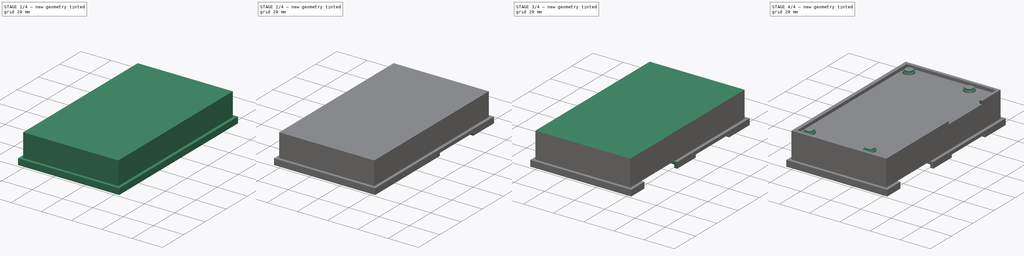
[diagram: build sequence overview — one tinted view per stage of 4, left to right]
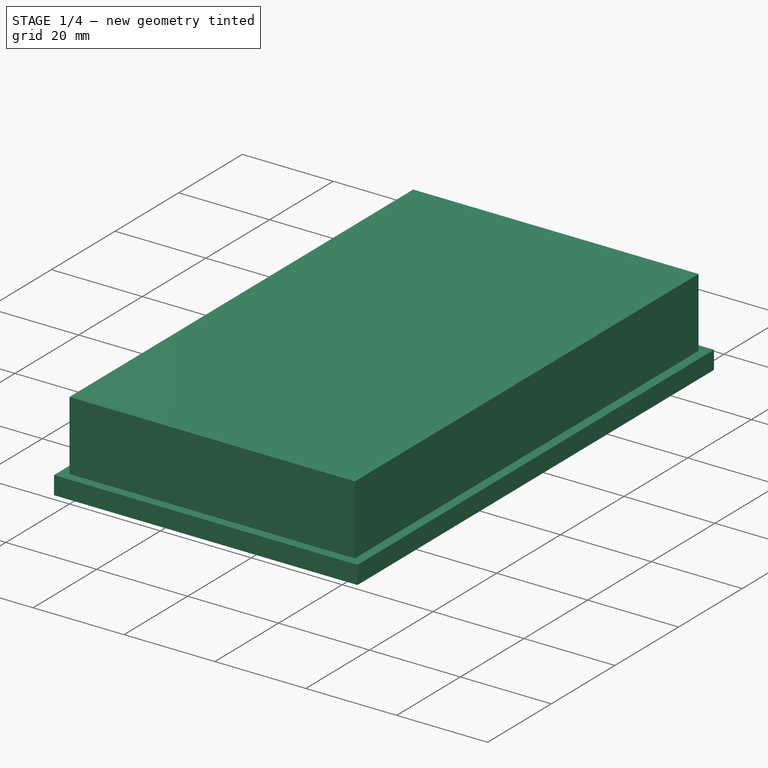
[diagram: stage 1 of 4 — iso view after this stage's code; geometry added in this stage tinted green]
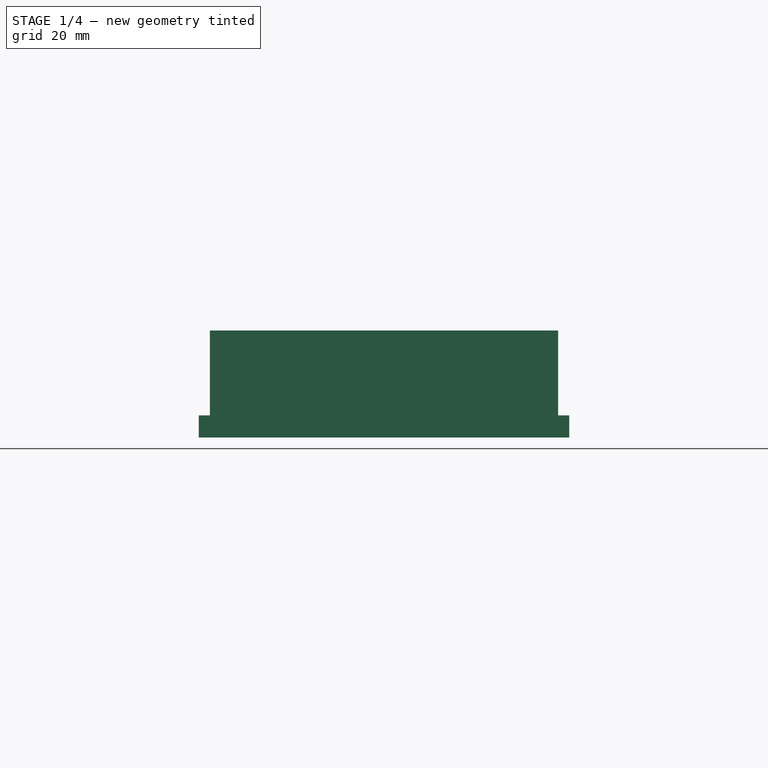
[diagram: stage 1 of 4 — front view after this stage's code; geometry added in this stage tinted green]
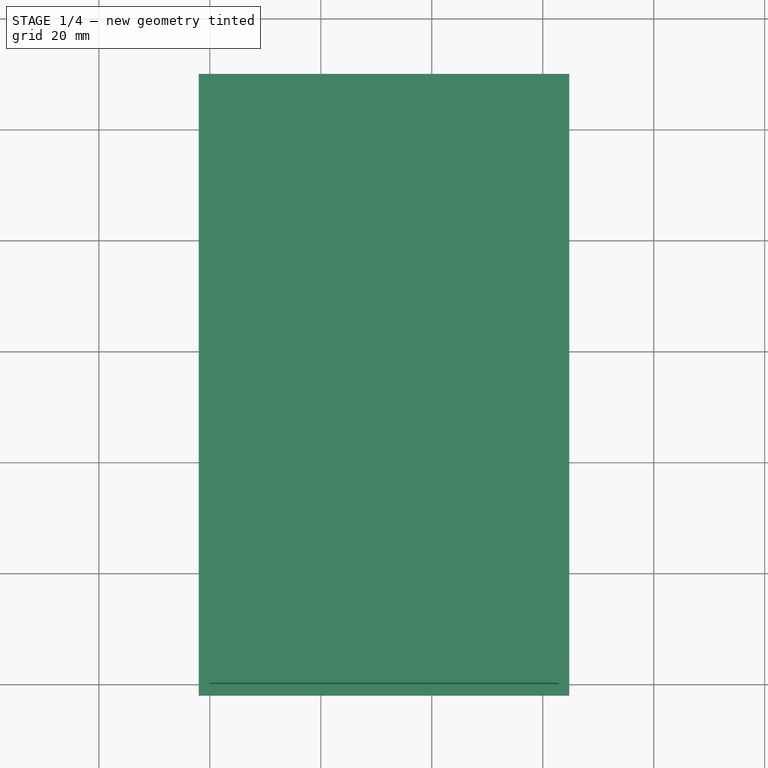
[diagram: stage 1 of 4 — top view after this stage's code; geometry added in this stage tinted green]
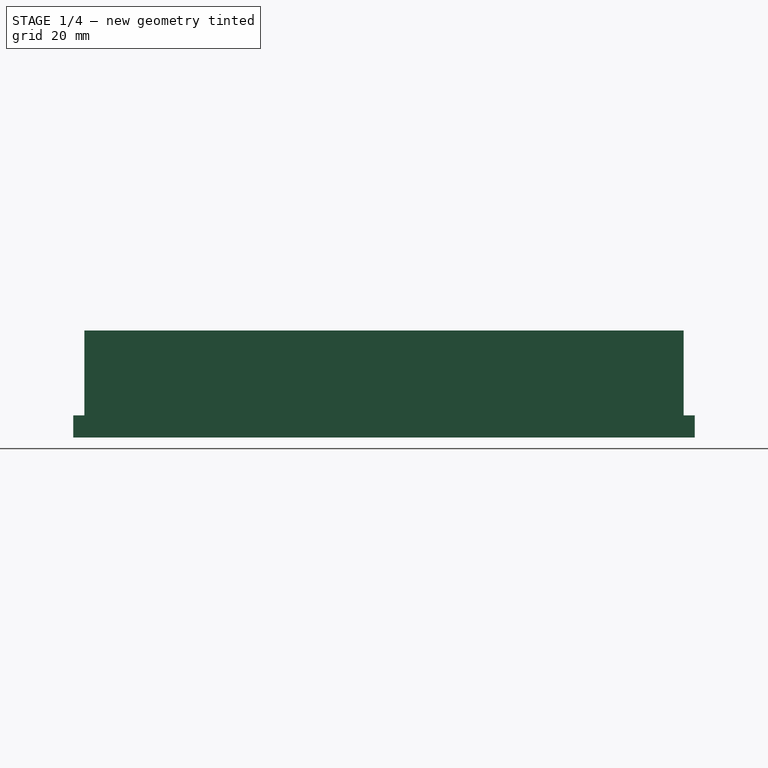
[diagram: stage 1 of 4 — right view after this stage's code; geometry added in this stage tinted green]
FCSTD DOCUMENT  (FreeCAD 0.18R4 (GitTag))
Label: CaseV1
License: All rights reserved
LicenseURL: http://en.wikipedia.org/wiki/All_rights_reserved
objects: Sketcher::SketchObject×12, PartDesign::Pocket×6, PartDesign::Pad×6, PartDesign::Body×2, App::Part×2, Part::Box×1, PartDesign::FeatureBase×1
note: 40 computed .brp shape members not serialized (recipe doc carries the construction recipe); baked Part::Feature solids carry a one-line shape summary decoded from their .brp

FEATURE [PartDesign::Body] Body
  BaseFeature = -> Box
  Group = -> [BaseFeature,Sketch,Pocket,Sketch001,Pocket001,Sketch002,Pad,Sketch003,Pad001]
  Origin = -> Origin001
  Tip = -> Pad001
FEATURE [App::Part] Part  label="Bottom"
  Group = -> [Body]
  Origin = -> Origin
  Placement = pos=(0,0,-19.3) rot=(0,0,1;0rad)
FEATURE [Sketcher::SketchObject] Sketch004
  MapMode = 5
  Support = -> [XY_Plane003]
  sketch-geometry (4):
    g0: LineSegment StartX=-2 StartY=-2 StartZ=0 EndX=64.78 EndY=-2 EndZ=0
    g1: LineSegment StartX=64.78 StartY=-2 StartZ=0 EndX=64.78 EndY=110 EndZ=0
    g2: LineSegment StartX=64.78 StartY=110 StartZ=0 EndX=-2 EndY=110 EndZ=0
    g3: LineSegment StartX=-2 StartY=110 StartZ=0 EndX=-2 EndY=-2 EndZ=0
  constraints (12):
    c: Coincident(g0,g1)
    c: Coincident(g1,g2)
    c: Coincident(g2,g3)
    c: Coincident(g3,g0)
    c: Horizontal(g0)
    c: Horizontal(g2)
    c: Vertical(g1)
    c: Vertical(g3)
    c: DistanceX(g0) = -2
    c: DistanceY(g0) = -2
    c: DistanceX(g2,g2) = 66.78
    c: DistanceY(g1,g1) = 112
FEATURE [PartDesign::Pad] Pad002
  Length = 4
  Length2 = 100
  Profile = -> Sketch004
  Reversed = true
  Type = 0
FEATURE [Sketcher::SketchObject] Sketch005
  MapMode = 5
  Support = -> [Pad002]
  sketch-geometry (4):
    g0: LineSegment StartX=0 StartY=0 StartZ=0 EndX=62.78 EndY=0 EndZ=0
    g1: LineSegment StartX=62.78 StartY=0 StartZ=0 EndX=62.78 EndY=108 EndZ=0
    g2: LineSegment StartX=62.78 StartY=108 StartZ=0 EndX=0 EndY=108 EndZ=0
    g3: LineSegment StartX=0 StartY=108 StartZ=0 EndX=0 EndY=0 EndZ=0
  constraints (12):
    c: Coincident(g0,g1)
    c: Coincident(g1,g2)
    c: Coincident(g2,g3)
    c: Coincident(g3,g0)
    c: Horizontal(g0)
    c: Horizontal(g2)
    c: Vertical(g1)
    c: Vertical(g3)
    c: DistanceX(g0) = 0
    c: DistanceY(g0) = 0
    c: DistanceX(g2,g2) = 62.78
    c: DistanceY(g1,g1) = 108
FEATURE [PartDesign::Pad] Pad003
  BaseFeature = -> Pad002
  Length = 15.3
  Length2 = 100
  Profile = -> Sketch005
  Type = 0
FEATURE [Sketcher::SketchObject] Sketch006
  MapMode = 5
  Placement = pos=(0,0,-4) rot=(1,0,0;3.14159rad)
  Support = -> [Pad003]
  sketch-geometry (4):
    g0: LineSegment StartX=0 StartY=0 StartZ=0 EndX=62.78 EndY=0 EndZ=0
    g1: LineSegment StartX=62.78 StartY=0 StartZ=0 EndX=62.78 EndY=-108 EndZ=0
    g2: LineSegment StartX=62.78 StartY=-108 StartZ=0 EndX=0 EndY=-108 EndZ=0
    g3: LineSegment StartX=0 StartY=-108 StartZ=0 EndX=0 EndY=0 EndZ=0
  constraints (12):
    c: Coincident(g0,g1)
    c: Coincident(g1,g2)
    c: Coincident(g2,g3)
    c: Coincident(g3,g0)
    c: Horizontal(g0)
    c: Horizontal(g2)
    c: Vertical(g1)
    c: Vertical(g3)
    c: DistanceX(g0) = 0
    c: DistanceY(g0) = 0
    c: DistanceX(g0,g0) = 62.78
    c: DistanceY(g1,g1) = 108
FEATURE [PartDesign::Pocket] Pocket002
  BaseFeature = -> Pad003
  Length = 2
  Length2 = 100
  Profile = -> Sketch006
  Type = 0
FEATURE [Sketcher::SketchObject] Sketch007
  MapMode = 5
  Placement = pos=(0,0,-2) rot=(1,0,0;3.14159rad)
  Support = -> [Pocket002]
  sketch-geometry (4):
    g0: LineSegment StartX=2 StartY=-2 StartZ=0 EndX=60.78 EndY=-2 EndZ=0
    g1: LineSegment StartX=60.78 StartY=-2 StartZ=0 EndX=60.78 EndY=-106 EndZ=0
    g2: LineSegment StartX=60.78 StartY=-106 StartZ=0 EndX=2 EndY=-106 EndZ=0
    g3: LineSegment StartX=2 StartY=-106 StartZ=0 EndX=2 EndY=-2 EndZ=0
  constraints (12):
    c: Coincident(g0,g1)
    c: Coincident(g1,g2)
    c: Coincident(g2,g3)
    c: Coincident(g3,g0)
    c: Horizontal(g0)
    c: Horizontal(g2)
    c: Vertical(g1)
    c: Vertical(g3)
    c: DistanceX(g0) = 2
    c: DistanceY(g0) = -2
    c: DistanceX(g0,g0) = 58.78
    c: DistanceY(g1,g1) = 104
FEATURE [PartDesign::Pocket] Pocket003
  BaseFeature = -> Pocket002
  Length = 15.3
  Length2 = 100
  Profile = -> Sketch007
  Type = 0
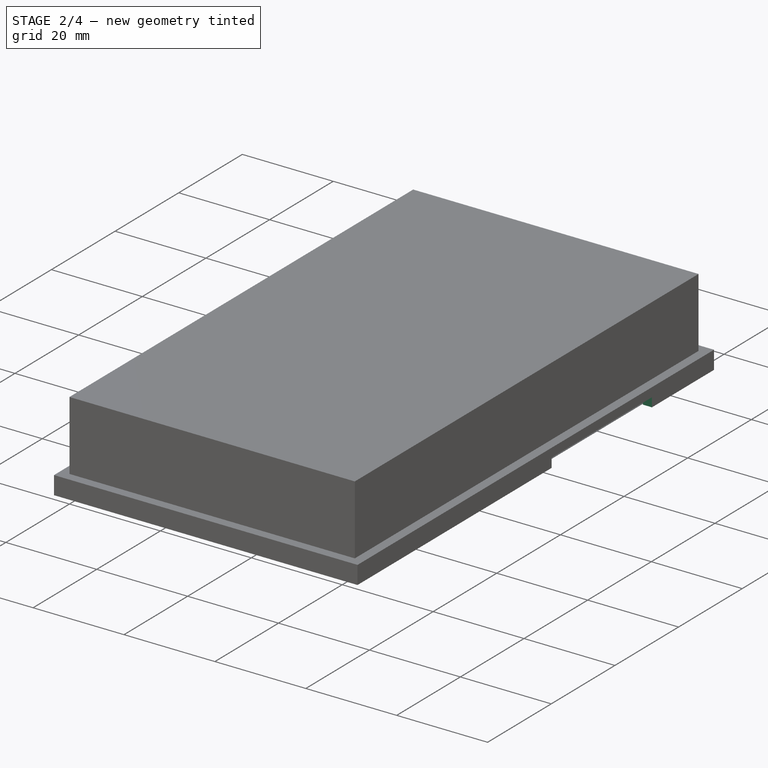
[diagram: stage 2 of 4 — iso view after this stage's code; geometry added in this stage tinted green]
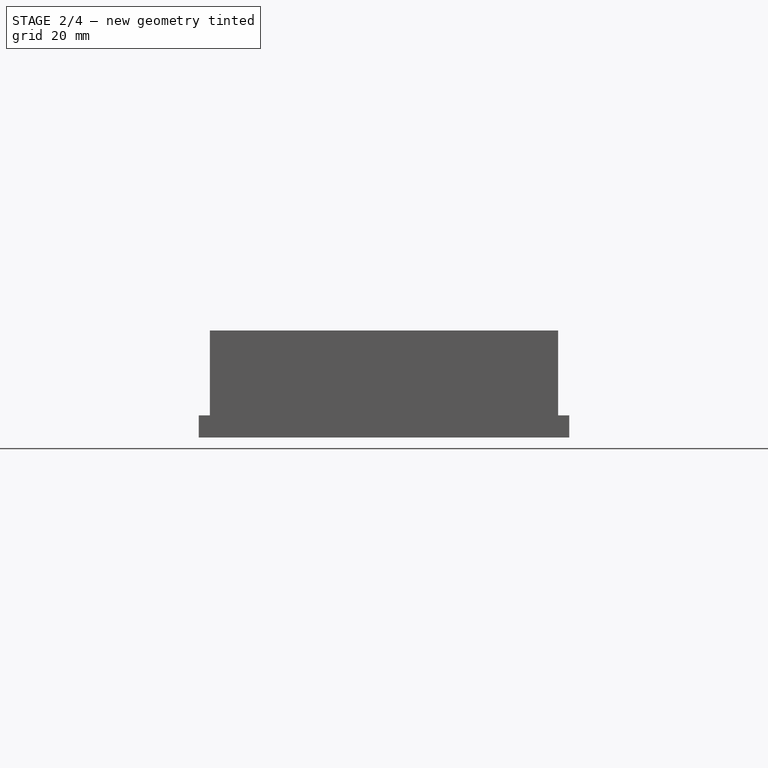
[diagram: stage 2 of 4 — front view after this stage's code; geometry added in this stage tinted green]
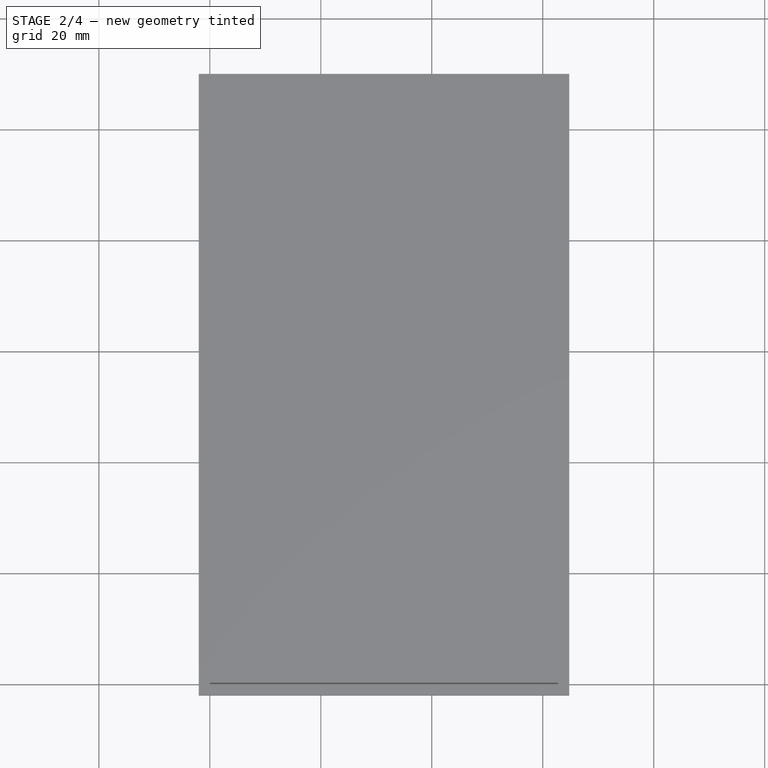
[diagram: stage 2 of 4 — top view after this stage's code; geometry added in this stage tinted green]
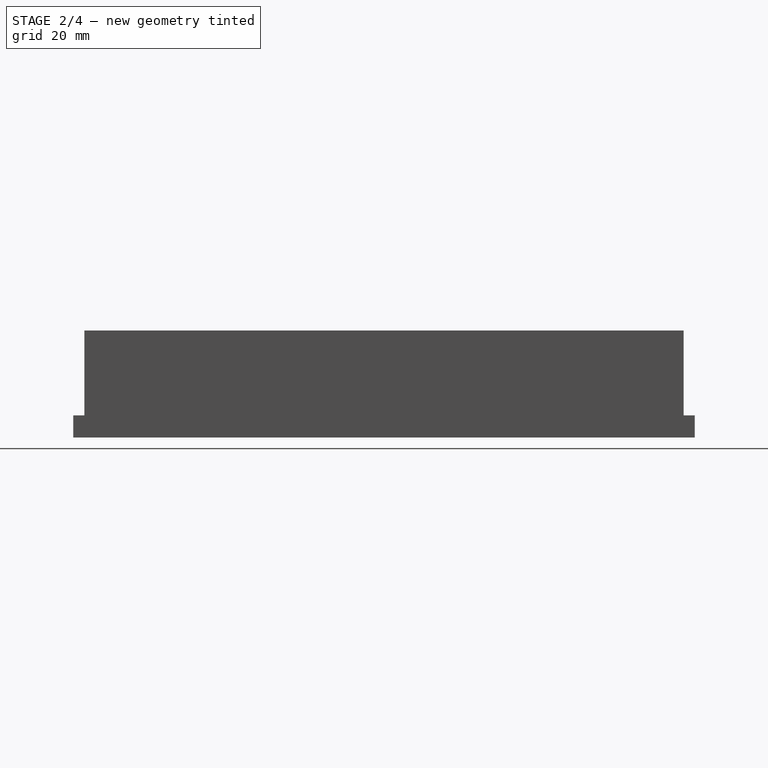
[diagram: stage 2 of 4 — right view after this stage's code; geometry added in this stage tinted green]
FEATURE [Sketcher::SketchObject] Sketch008
  MapMode = 5
  Placement = pos=(0,0,13.3) rot=(1,0,0;3.14159rad)
  Support = -> [Pocket003]
  sketch-geometry (4):
    g0: Circle CenterX=7 CenterY=-7 CenterZ=0 NormalX=0 NormalY=0 NormalZ=1 AngleXU=0 Radius=3.5
    g1: Circle CenterX=47 CenterY=-7 CenterZ=0 NormalX=0 NormalY=0 NormalZ=1 AngleXU=0 Radius=3.5
    g2: Circle CenterX=7 CenterY=-101 CenterZ=0 NormalX=0 NormalY=0 NormalZ=1 AngleXU=0 Radius=3.5
    g3: Circle CenterX=47 CenterY=-101 CenterZ=0 NormalX=0 NormalY=0 NormalZ=1 AngleXU=0 Radius=3.5
  constraints (12):
    c: DistanceX(g0) = 7
    c: DistanceY(g0) = -7
    c: Diameter(g0) = 7
    c: DistanceX(g1) = 47
    c: DistanceY(g1) = -7
    c: DistanceX(g2) = 7
    c: DistanceY(g2) = -101
    c: Diameter(g1) = 7
    c: Diameter(g2) = 7
    c: DistanceX(g3) = 47
    c: DistanceY(g3) = -101
    c: Diameter(g3) = 7
FEATURE [PartDesign::Pad] Pad004
  BaseFeature = -> Pocket003
  Length = 14.5
  Length2 = 100
  Profile = -> Sketch008
  Type = 0
FEATURE [Sketcher::SketchObject] Sketch009
  MapMode = 5
  Placement = pos=(0,0,-1.2) rot=(1,0,0;3.14159rad)
  Support = -> [Pad004]
  sketch-geometry (4):
    g0: Circle CenterX=7 CenterY=-7 CenterZ=0 NormalX=0 NormalY=0 NormalZ=1 AngleXU=0 Radius=2.5
    g1: Circle CenterX=47 CenterY=-7 CenterZ=0 NormalX=0 NormalY=0 NormalZ=1 AngleXU=0 Radius=2.5
    g2: Circle CenterX=7 CenterY=-101 CenterZ=0 NormalX=0 NormalY=0 NormalZ=1 AngleXU=0 Radius=2.5
    g3: Circle CenterX=47 CenterY=-101 CenterZ=0 NormalX=0 NormalY=0 NormalZ=1 AngleXU=0 Radius=2.5
  constraints (12):
    c: DistanceX(g2) = 7
    c: DistanceY(g2) = -101
    c: DistanceX(g0) = 7
    c: DistanceY(g0) = -7
    c: DistanceX(g1) = 47
    c: DistanceY(g1) = -7
    c: DistanceX(g3) = 47
    c: DistanceY(g3) = -101
    c: Diameter(g0) = 5
    c: Diameter(g1) = 5
    c: Diameter(g2) = 5
    c: Diameter(g3) = 5
FEATURE [PartDesign::Pad] Pad005
  BaseFeature = -> Pad004
  Length = 0.8
  Length2 = 100
  Profile = -> Sketch009
  Type = 0
FEATURE [Sketcher::SketchObject] Sketch010
  MapMode = 5
  Placement = pos=(64.78,0,0) rot=(0.57735,0.57735,0.57735;2.0944rad)
  Support = -> [Pad005]
  sketch-geometry (4):
    g0: LineSegment StartX=59 StartY=-7.15 StartZ=0 EndX=90.5 EndY=-7.15 EndZ=0
    g1: LineSegment StartX=90.5 StartY=-7.15 StartZ=0 EndX=90.5 EndY=-2 EndZ=0
    g2: LineSegment StartX=90.5 StartY=-2 StartZ=0 EndX=59 EndY=-2 EndZ=0
    g3: LineSegment StartX=59 StartY=-2 StartZ=0 EndX=59 EndY=-7.15 EndZ=0
  constraints (12):
    c: Coincident(g0,g1)
    c: Coincident(g1,g2)
    c: Coincident(g2,g3)
    c: Coincident(g3,g0)
    c: Horizontal(g0)
    c: Horizontal(g2)
    c: Vertical(g1)
    c: Vertical(g3)
    c: DistanceX(g2) = 59
    c: DistanceY(g2) = -2
    c: DistanceX(g2,g2) = 31.5
    c: DistanceY(g1,g1) = 5.15
FEATURE [PartDesign::Pocket] Pocket004
  BaseFeature = -> Pad005
  Length = 5
  Length2 = 100
  Profile = -> Sketch010
  Type = 0
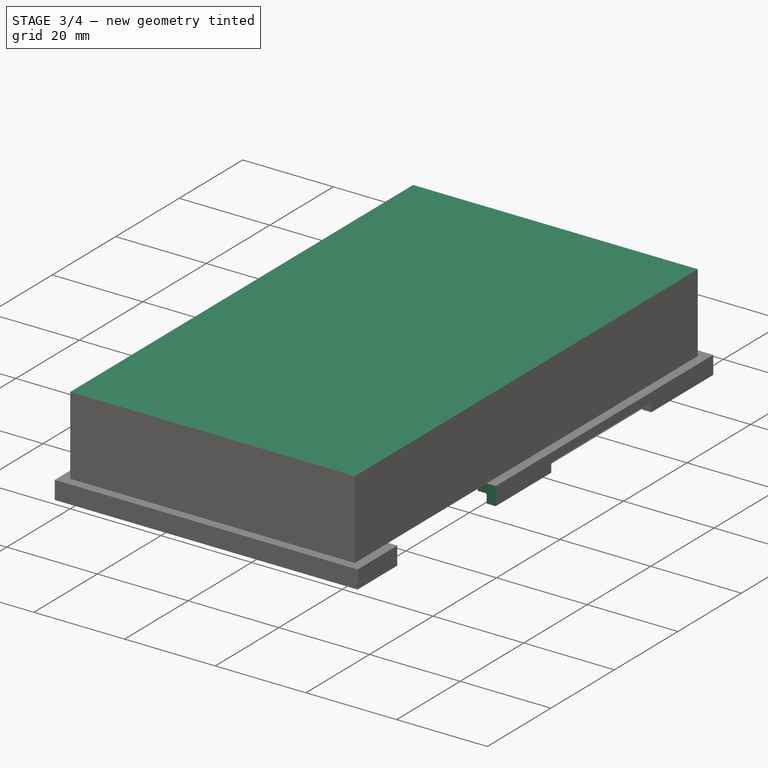
[diagram: stage 3 of 4 — iso view after this stage's code; geometry added in this stage tinted green]
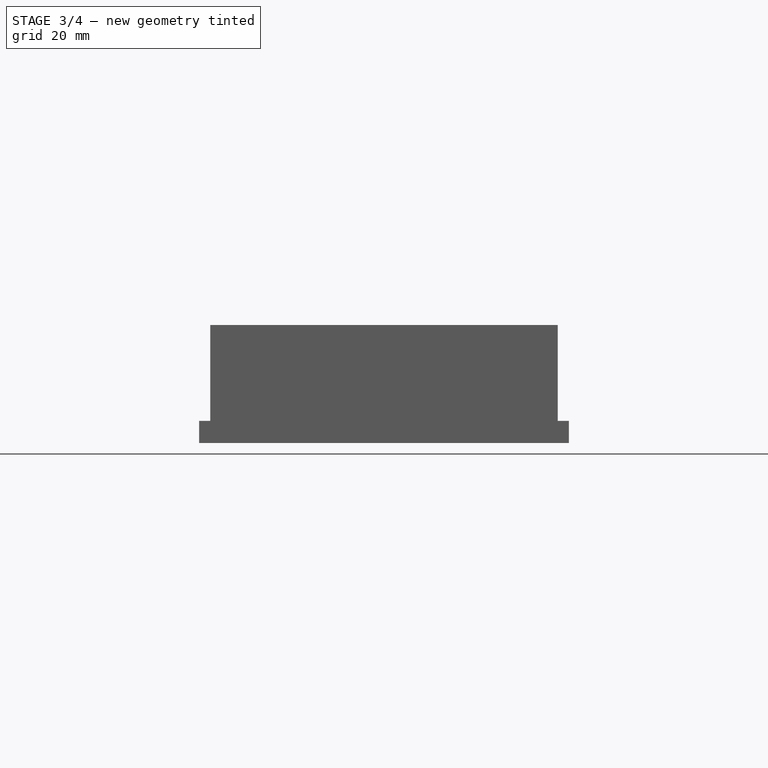
[diagram: stage 3 of 4 — front view after this stage's code; geometry added in this stage tinted green]
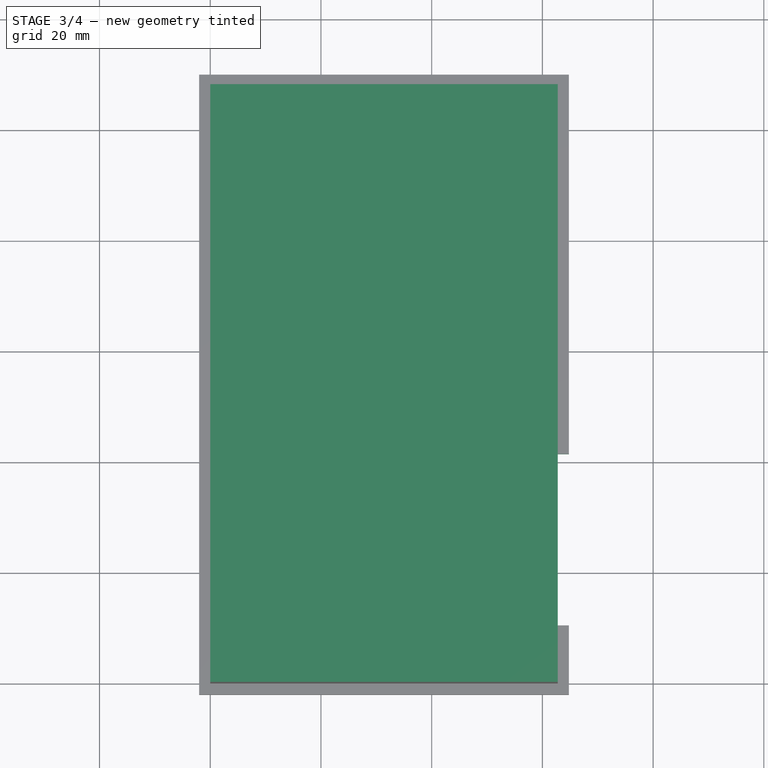
[diagram: stage 3 of 4 — top view after this stage's code; geometry added in this stage tinted green]
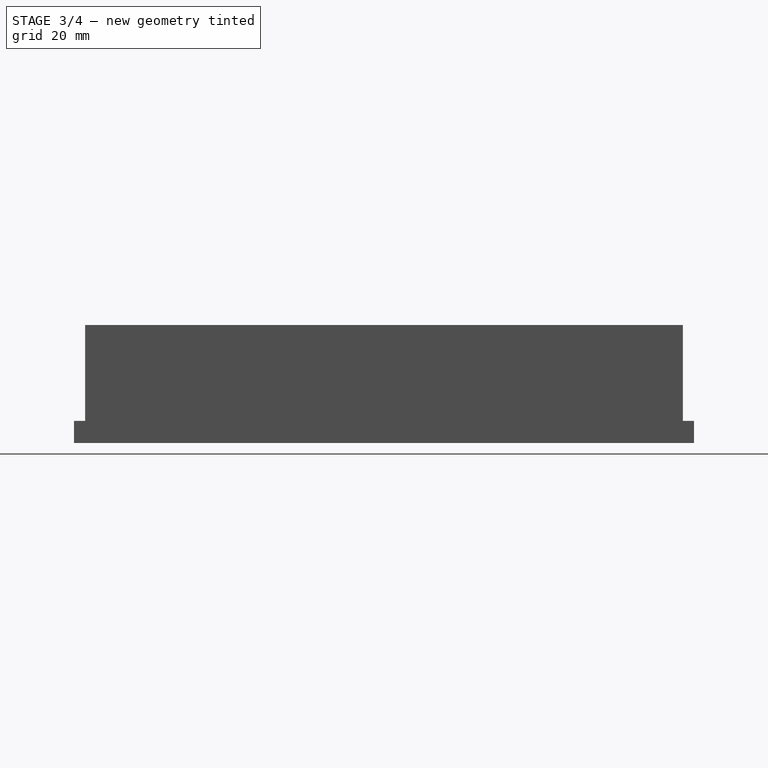
[diagram: stage 3 of 4 — right view after this stage's code; geometry added in this stage tinted green]
FEATURE [Part::Box] Box  label="Würfel"
  AttacherType = Attacher::AttachEngine3D
  Height = 17.3
  Length = 62.78
  Width = 108
FEATURE [Sketcher::SketchObject] Sketch
  MapMode = 5
  Placement = pos=(0,0,17.3) rot=(0,0,1;0rad)
  Support = -> [Box]
  sketch-geometry (4):
    g0: LineSegment StartX=2.26167 StartY=1.98619 StartZ=0 EndX=61.0417 EndY=1.98619 EndZ=0
    g1: LineSegment StartX=61.0417 StartY=1.98619 StartZ=0 EndX=61.0417 EndY=105.986 EndZ=0
    g2: LineSegment StartX=61.0417 StartY=105.986 StartZ=0 EndX=2.26167 EndY=105.986 EndZ=0
    g3: LineSegment StartX=2.26167 StartY=105.986 StartZ=0 EndX=2.26167 EndY=1.98619 EndZ=0
  constraints (12):
    c: Coincident(g0,g1)
    c: Coincident(g1,g2)
    c: Coincident(g2,g3)
    c: Coincident(g3,g0)
    c: Horizontal(g0)
    c: Horizontal(g2)
    c: Vertical(g1)
    c: Vertical(g3)
    c: DistanceX(g0,g0) = 58.78
    c: DistanceY(g1,g1) = 104
    c: DistanceX(g0) = 2.26167
    c: DistanceY(g0) = 1.98619
FEATURE [PartDesign::FeatureBase] BaseFeature
  BaseFeature = -> Box
FEATURE [Sketcher::SketchObject] Sketch011
  MapMode = 5
  Placement = pos=(64.78,0,0) rot=(0.57735,0.57735,0.57735;2.0944rad)
  Support = -> [Pocket004]
  sketch-geometry (4):
    g0: LineSegment StartX=10.5 StartY=-4 StartZ=0 EndX=41.5 EndY=-4 EndZ=0
    g1: LineSegment StartX=41.5 StartY=-4 StartZ=0 EndX=41.5 EndY=11 EndZ=0
    g2: LineSegment StartX=41.5 StartY=11 StartZ=0 EndX=10.5 EndY=11 EndZ=0
    g3: LineSegment StartX=10.5 StartY=11 StartZ=0 EndX=10.5 EndY=-4 EndZ=0
  constraints (12):
    c: Coincident(g0,g1)
    c: Coincident(g1,g2)
    c: Coincident(g2,g3)
    c: Coincident(g3,g0)
    c: Horizontal(g0)
    c: Horizontal(g2)
    c: Vertical(g1)
    c: Vertical(g3)
    c: DistanceY(g1,g1) = 15
    c: DistanceX(g0) = 10.5
    c: DistanceY(g0) = -4
    c: DistanceX(g2,g2) = 31
FEATURE [PartDesign::Pocket] Pocket005
  BaseFeature = -> Pocket004
  Length = 5
  Length2 = 100
  Profile = -> Sketch011
  Type = 0
FEATURE [PartDesign::Body] Body001
  Group = -> [Sketch004,Pad002,Sketch005,Pad003,Sketch006,Pocket002,Sketch007,Pocket003,Sketch008,Pad004,Sketch009,Pad005,Sketch010,Pocket004,Sketch011,Pocket005]
  Origin = -> Origin003
  Tip = -> Pocket005
FEATURE [App::Part] Part001  label="Top"
  Group = -> [Body001]
  Origin = -> Origin002
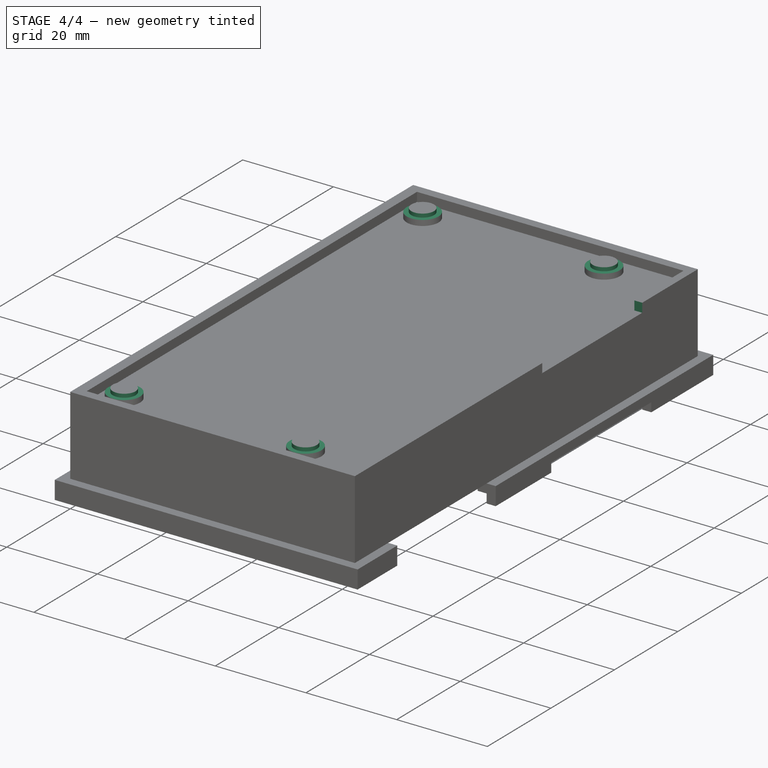
[diagram: stage 4 of 4 — iso view after this stage's code; geometry added in this stage tinted green]
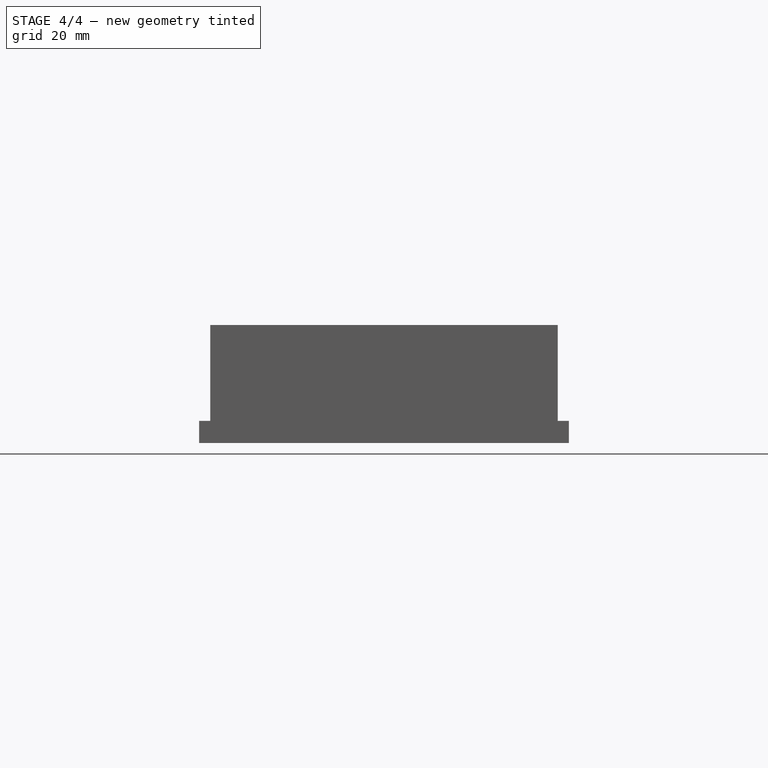
[diagram: stage 4 of 4 — front view after this stage's code; geometry added in this stage tinted green]
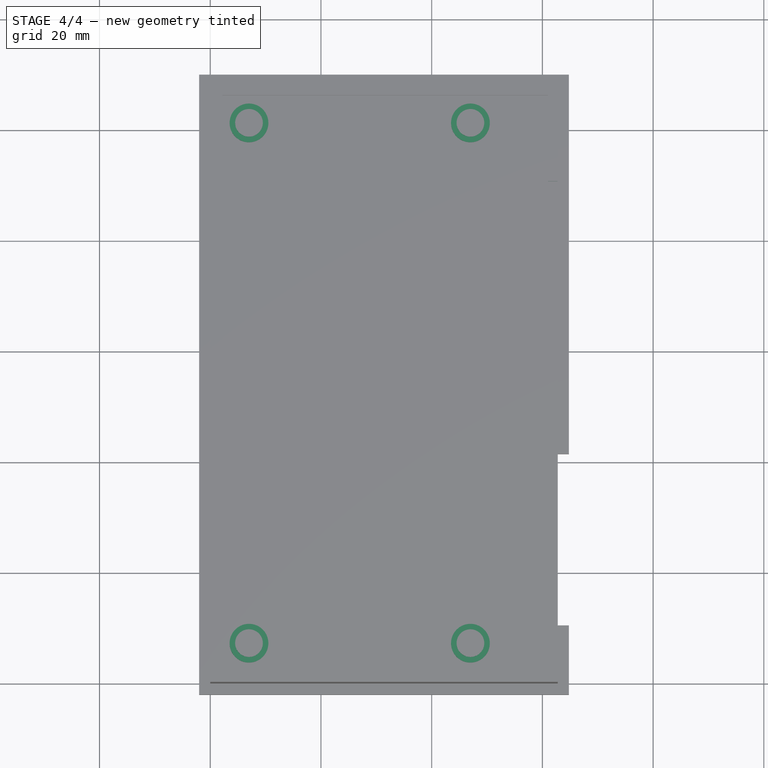
[diagram: stage 4 of 4 — top view after this stage's code; geometry added in this stage tinted green]
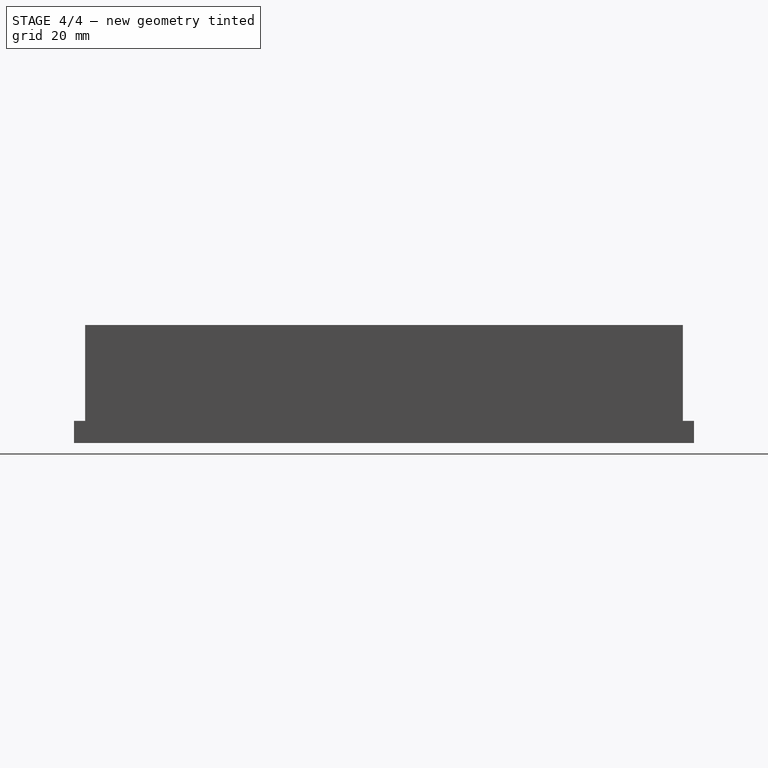
[diagram: stage 4 of 4 — right view after this stage's code; geometry added in this stage tinted green]
FEATURE [PartDesign::Pocket] Pocket
  BaseFeature = -> BaseFeature
  Length = 15.3
  Length2 = 100
  Profile = -> Sketch
  Type = 0
FEATURE [Sketcher::SketchObject] Sketch001
  MapMode = 5
  Placement = pos=(0,0,17.3) rot=(0,0,1;0rad)
  Support = -> [Pocket]
  sketch-geometry (4):
    g0: LineSegment StartX=63.087 StartY=59 StartZ=0 EndX=60.857 EndY=59 EndZ=0
    g1: LineSegment StartX=60.857 StartY=59 StartZ=0 EndX=60.857 EndY=90.5 EndZ=0
    g2: LineSegment StartX=60.857 StartY=90.5 StartZ=0 EndX=63.087 EndY=90.5 EndZ=0
    g3: LineSegment StartX=63.087 StartY=90.5 StartZ=0 EndX=63.087 EndY=59 EndZ=0
  constraints (12):
    c: Coincident(g0,g1)
    c: Coincident(g1,g2)
    c: Coincident(g2,g3)
    c: Coincident(g3,g0)
    c: Horizontal(g0)
    c: Horizontal(g2)
    c: Vertical(g1)
    c: Vertical(g3)
    c: DistanceX(g0,g0) = 2.23
    c: DistanceY(g3,g3) = 31.5
    c: DistanceX(g0) = 63.087
    c: DistanceY(g0) = 59
FEATURE [PartDesign::Pocket] Pocket001
  BaseFeature = -> Pocket
  Length = 13
  Length2 = 100
  Profile = -> Sketch001
  Type = 0
FEATURE [Sketcher::SketchObject] Sketch002
  MapMode = 5
  Placement = pos=(0,0,2) rot=(0,0,1;0rad)
  Support = -> [Pocket001]
  sketch-geometry (4):
    g0: Circle CenterX=7 CenterY=101 CenterZ=0 NormalX=0 NormalY=0 NormalZ=1 AngleXU=0 Radius=3.5
    g1: Circle CenterX=47 CenterY=101 CenterZ=0 NormalX=0 NormalY=0 NormalZ=1 AngleXU=0 Radius=3.5
    g2: Circle CenterX=7 CenterY=7 CenterZ=0 NormalX=0 NormalY=0 NormalZ=1 AngleXU=0 Radius=3.5
    g3: Circle CenterX=47 CenterY=7 CenterZ=0 NormalX=0 NormalY=0 NormalZ=1 AngleXU=0 Radius=3.5
  constraints (12):
    c: DistanceX(g0) = 7
    c: DistanceY(g0) = 101
    c: DistanceX(g1) = 47
    c: DistanceY(g1) = 101
    c: DistanceX(g3) = 47
    c: DistanceY(g3) = 7
    c: DistanceX(g2) = 7
    c: DistanceY(g2) = 7
    c: Diameter(g3) = 7
    c: Diameter(g2) = 7
    c: Diameter(g1) = 7
    c: Diameter(g0) = 7
FEATURE [PartDesign::Pad] Pad
  BaseFeature = -> Pocket001
  Length = 14.5
  Length2 = 100
  Profile = -> Sketch002
  Type = 0
FEATURE [Sketcher::SketchObject] Sketch003
  MapMode = 5
  Placement = pos=(0,0,16.5) rot=(0,0,1;0rad)
  Support = -> [Pad]
  sketch-geometry (4):
    g0: Circle CenterX=7 CenterY=7 CenterZ=0 NormalX=0 NormalY=0 NormalZ=1 AngleXU=0 Radius=2.5
    g1: Circle CenterX=47 CenterY=7 CenterZ=0 NormalX=0 NormalY=0 NormalZ=1 AngleXU=0 Radius=2.5
    g2: Circle CenterX=7 CenterY=101 CenterZ=0 NormalX=0 NormalY=0 NormalZ=1 AngleXU=0 Radius=2.5
    g3: Circle CenterX=47 CenterY=101 CenterZ=0 NormalX=0 NormalY=0 NormalZ=1 AngleXU=0 Radius=2.5
  constraints (12):
    c: DistanceX(g0) = 7
    c: DistanceY(g0) = 7
    c: Diameter(g0) = 5
    c: DistanceX(g1) = 47
    c: DistanceY(g1) = 7
    c: Diameter(g1) = 5
    c: Diameter(g2) = 5
    c: Diameter(g3) = 5
    c: DistanceX(g2) = 7
    c: DistanceY(g2) = 101
    c: DistanceX(g3) = 47
    c: DistanceY(g3) = 101
FEATURE [PartDesign::Pad] Pad001
  BaseFeature = -> Pad
  Length = 0.8
  Length2 = 100
  Profile = -> Sketch003
  Type = 0
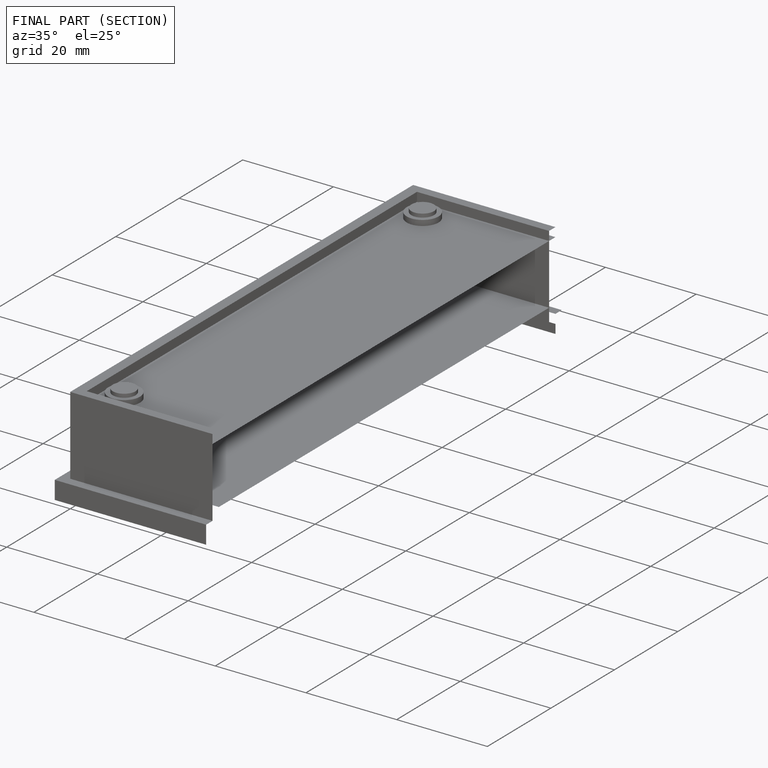
[diagram: finished part — half-section view (interior)]
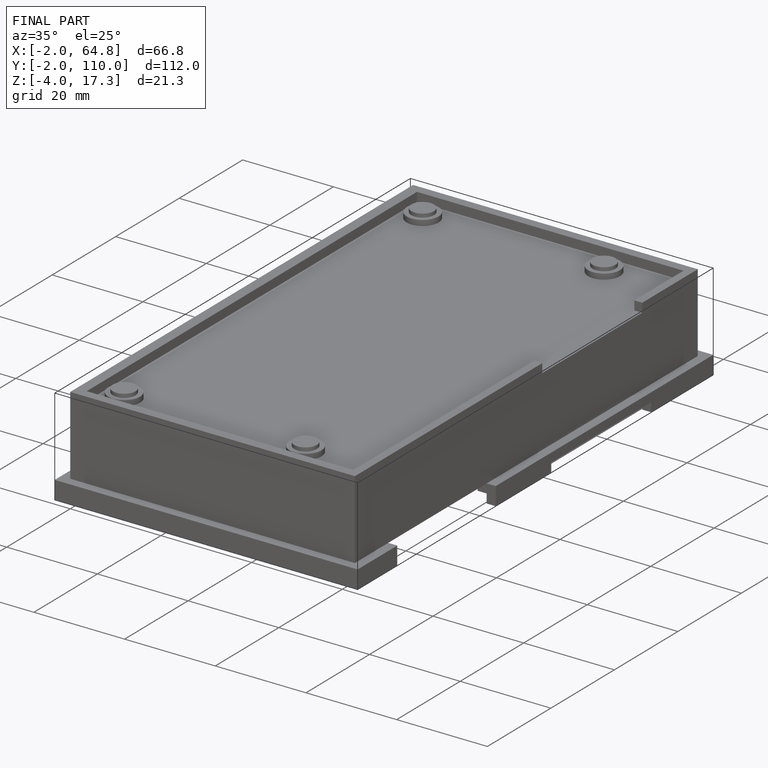
[diagram: finished part — iso view with bounding-box wireframe]
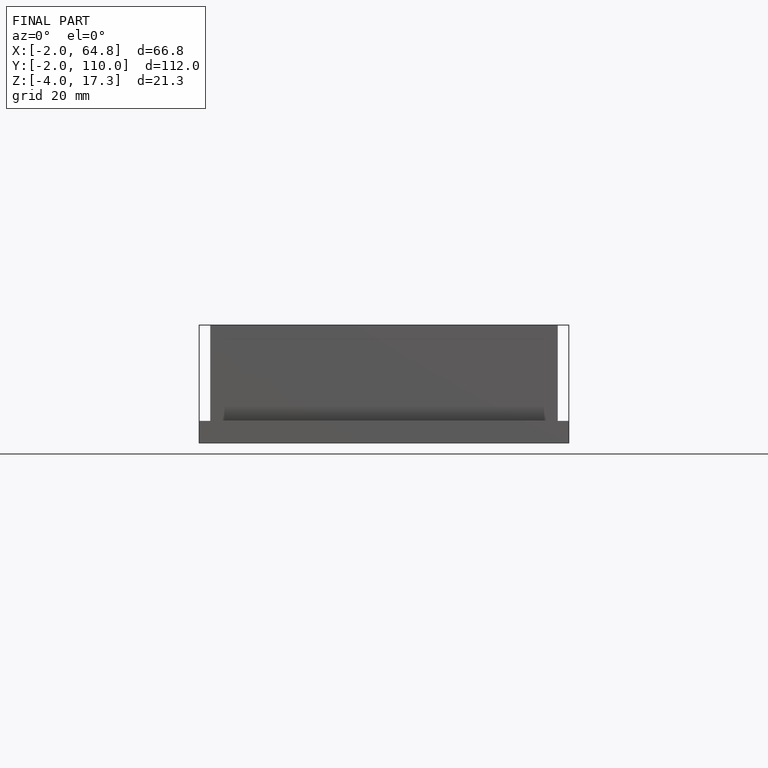
[diagram: finished part — front view with bounding-box wireframe]
